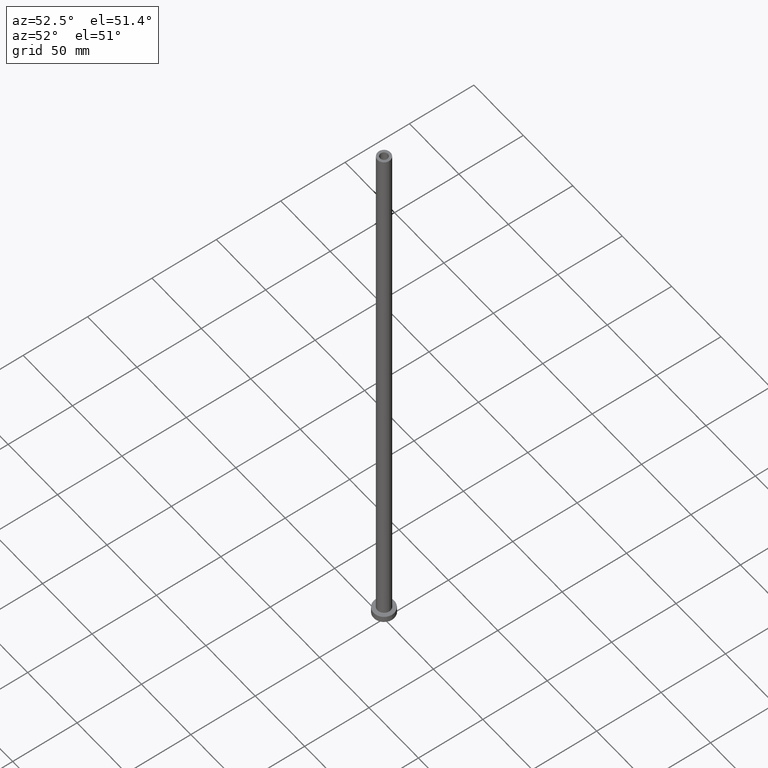
[diagram: clean part render]
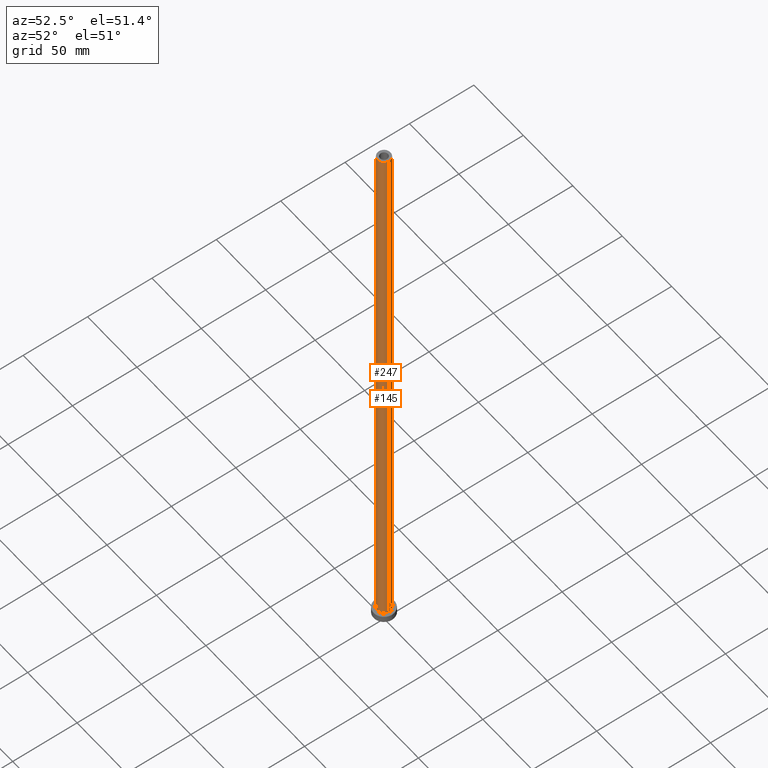
[diagram: same view with one multi-face feature highlighted, each face labeled with its STEP entity id]
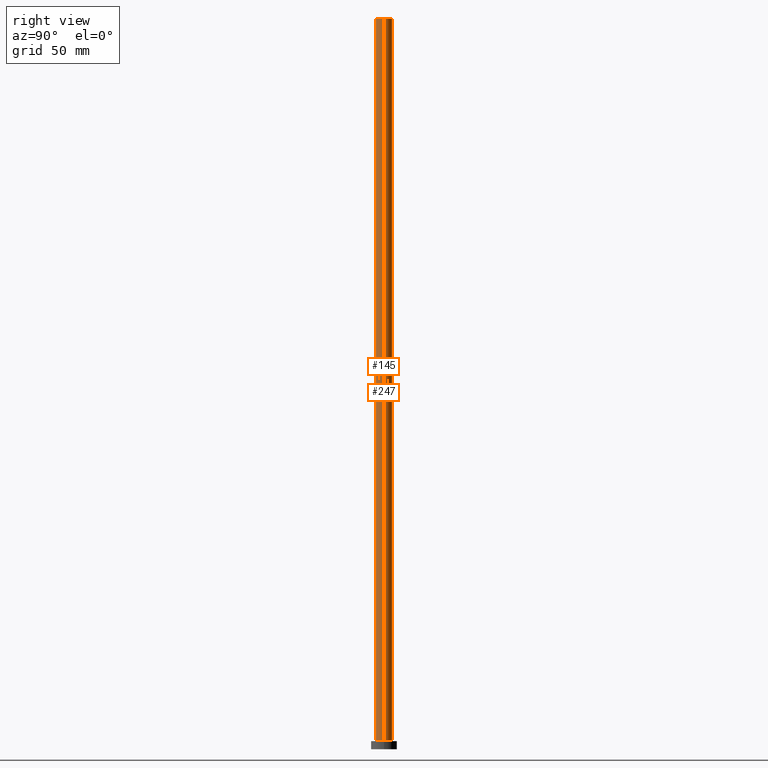
[diagram: same view with one multi-face feature highlighted, each face labeled with its STEP entity id]
A machine part, auxiliary view. The highlighted faces form ONE feature: a constant-radius fillet chain: 2 tangent blend faces with common blend radius 5 mm. The faces share edges in the B-rep.
A second angle (right view) of the same feature is appended — it is thin or edge-on in the first view.
Their STEP definitions:
[1] entity #247 (Cylinder):
#2 = LINE ( 'NONE', #399, #116 ) ;
#7 = DIRECTION ( 'NONE',  ( -0.000000000000000000, -0.000000000000000000, -1.000000000000000000 ) ) ;
#17 = DIRECTION ( 'NONE',  ( -0.000000000000000000, -0.000000000000000000, -1.000000000000000000 ) ) ;
#48 = CARTESIAN_POINT ( 'NONE',  ( -5.000000000000000000, 0.000000000000000000, 5.500000000000005329 ) ) ;
#49 = ORIENTED_EDGE ( 'NONE', *, *, #306, .T. ) ;
#65 = ORIENTED_EDGE ( 'NONE', *, *, #129, .F. ) ;
#68 = ORIENTED_EDGE ( 'NONE', *, *, #156, .F. ) ;
#71 = AXIS2_PLACEMENT_3D ( 'NONE', #198, #240, #441 ) ;
#116 = VECTOR ( 'NONE', #7, 1000.000000000000000 ) ;
#127 = CIRCLE ( 'NONE', #152, 5.000000000000000000 ) ;
#129 = EDGE_CURVE ( 'NONE', #147, #219, #127, .T. ) ;
#132 = DIRECTION ( 'NONE',  ( -0.000000000000000000, -0.000000000000000000, -1.000000000000000000 ) ) ;
#147 = VERTEX_POINT ( 'NONE', #171 ) ;
#152 = AXIS2_PLACEMENT_3D ( 'NONE', #204, #167, #354 ) ;
#156 = EDGE_CURVE ( 'NONE', #219, #381, #325, .T. ) ;
#165 = CIRCLE ( 'NONE', #71, 5.000000000000000000 ) ;
#167 = DIRECTION ( 'NONE',  ( 0.000000000000000000, 0.000000000000000000, 1.000000000000000000 ) ) ;
#171 = CARTESIAN_POINT ( 'NONE',  ( 5.000000000000000000, 6.123233995736766282E-16, 450.0000000000000000 ) ) ;
#181 = CARTESIAN_POINT ( 'NONE',  ( 5.000000000000000000, 6.123233995736766282E-16, 5.500000000000005329 ) ) ;
#193 = FACE_OUTER_BOUND ( 'NONE', #422, .T. ) ;
#198 = CARTESIAN_POINT ( 'NONE',  ( 0.000000000000000000, 0.000000000000000000, 5.500000000000005329 ) ) ;
#204 = CARTESIAN_POINT ( 'NONE',  ( 0.000000000000000000, 0.000000000000000000, 450.0000000000000000 ) ) ;
#219 = VERTEX_POINT ( 'NONE', #425 ) ;
#240 = DIRECTION ( 'NONE',  ( 0.000000000000000000, 0.000000000000000000, 1.000000000000000000 ) ) ;
#247 = ADVANCED_FACE ( 'NONE', ( #193 ), #340, .T. ) ;
#286 = EDGE_CURVE ( 'NONE', #147, #408, #2, .T. ) ;
#297 = CARTESIAN_POINT ( 'NONE',  ( -5.000000000000000000, 0.000000000000000000, 450.0000000000000000 ) ) ;
#306 = EDGE_CURVE ( 'NONE', #408, #381, #165, .T. ) ;
#308 = DIRECTION ( 'NONE',  ( -1.000000000000000000, 0.000000000000000000, 0.000000000000000000 ) ) ;
#319 = VECTOR ( 'NONE', #132, 1000.000000000000000 ) ;
#325 = LINE ( 'NONE', #297, #319 ) ;
#340 = CYLINDRICAL_SURFACE ( 'NONE', #357, 5.000000000000000000 ) ;
#354 = DIRECTION ( 'NONE',  ( 1.000000000000000000, 0.000000000000000000, 0.000000000000000000 ) ) ;
#357 = AXIS2_PLACEMENT_3D ( 'NONE', #371, #17, #308 ) ;
#371 = CARTESIAN_POINT ( 'NONE',  ( 0.000000000000000000, 0.000000000000000000, 450.0000000000000000 ) ) ;
#373 = ORIENTED_EDGE ( 'NONE', *, *, #286, .T. ) ;
#381 = VERTEX_POINT ( 'NONE', #48 ) ;
#399 = CARTESIAN_POINT ( 'NONE',  ( 5.000000000000000000, 6.123233995736766282E-16, 450.0000000000000000 ) ) ;
#408 = VERTEX_POINT ( 'NONE', #181 ) ;
#422 = EDGE_LOOP ( 'NONE', ( #65, #373, #49, #68 ) ) ;
#425 = CARTESIAN_POINT ( 'NONE',  ( -5.000000000000000000, 0.000000000000000000, 450.0000000000000000 ) ) ;
#441 = DIRECTION ( 'NONE',  ( 1.000000000000000000, 0.000000000000000000, 0.000000000000000000 ) ) ;
[2] entity #145 (Cylinder):
#2 = LINE ( 'NONE', #399, #116 ) ;
#7 = DIRECTION ( 'NONE',  ( -0.000000000000000000, -0.000000000000000000, -1.000000000000000000 ) ) ;
#24 = DIRECTION ( 'NONE',  ( -1.000000000000000000, 0.000000000000000000, 0.000000000000000000 ) ) ;
#48 = CARTESIAN_POINT ( 'NONE',  ( -5.000000000000000000, 0.000000000000000000, 5.500000000000005329 ) ) ;
#93 = CYLINDRICAL_SURFACE ( 'NONE', #115, 5.000000000000000000 ) ;
#95 = DIRECTION ( 'NONE',  ( 0.000000000000000000, 0.000000000000000000, 1.000000000000000000 ) ) ;
#99 = AXIS2_PLACEMENT_3D ( 'NONE', #383, #95, #390 ) ;
#115 = AXIS2_PLACEMENT_3D ( 'NONE', #212, #252, #24 ) ;
#116 = VECTOR ( 'NONE', #7, 1000.000000000000000 ) ;
#123 = EDGE_CURVE ( 'NONE', #381, #408, #460, .T. ) ;
#132 = DIRECTION ( 'NONE',  ( -0.000000000000000000, -0.000000000000000000, -1.000000000000000000 ) ) ;
#141 = CARTESIAN_POINT ( 'NONE',  ( 0.000000000000000000, 0.000000000000000000, 450.0000000000000000 ) ) ;
#145 = ADVANCED_FACE ( 'NONE', ( #288 ), #93, .T. ) ;
#147 = VERTEX_POINT ( 'NONE', #171 ) ;
#156 = EDGE_CURVE ( 'NONE', #219, #381, #325, .T. ) ;
#168 = CIRCLE ( 'NONE', #387, 5.000000000000000000 ) ;
#171 = CARTESIAN_POINT ( 'NONE',  ( 5.000000000000000000, 6.123233995736766282E-16, 450.0000000000000000 ) ) ;
#181 = CARTESIAN_POINT ( 'NONE',  ( 5.000000000000000000, 6.123233995736766282E-16, 5.500000000000005329 ) ) ;
#212 = CARTESIAN_POINT ( 'NONE',  ( 0.000000000000000000, 0.000000000000000000, 450.0000000000000000 ) ) ;
#219 = VERTEX_POINT ( 'NONE', #425 ) ;
#252 = DIRECTION ( 'NONE',  ( -0.000000000000000000, -0.000000000000000000, -1.000000000000000000 ) ) ;
#265 = EDGE_LOOP ( 'NONE', ( #398, #370, #367, #401 ) ) ;
#286 = EDGE_CURVE ( 'NONE', #147, #408, #2, .T. ) ;
#288 = FACE_OUTER_BOUND ( 'NONE', #265, .T. ) ;
#297 = CARTESIAN_POINT ( 'NONE',  ( -5.000000000000000000, 0.000000000000000000, 450.0000000000000000 ) ) ;
#299 = EDGE_CURVE ( 'NONE', #219, #147, #168, .T. ) ;
#319 = VECTOR ( 'NONE', #132, 1000.000000000000000 ) ;
#325 = LINE ( 'NONE', #297, #319 ) ;
#344 = DIRECTION ( 'NONE',  ( 0.000000000000000000, 0.000000000000000000, 1.000000000000000000 ) ) ;
#366 = DIRECTION ( 'NONE',  ( 1.000000000000000000, 0.000000000000000000, 0.000000000000000000 ) ) ;
#367 = ORIENTED_EDGE ( 'NONE', *, *, #156, .T. ) ;
#370 = ORIENTED_EDGE ( 'NONE', *, *, #299, .F. ) ;
#381 = VERTEX_POINT ( 'NONE', #48 ) ;
#383 = CARTESIAN_POINT ( 'NONE',  ( 0.000000000000000000, 0.000000000000000000, 5.500000000000005329 ) ) ;
#387 = AXIS2_PLACEMENT_3D ( 'NONE', #141, #344, #366 ) ;
#390 = DIRECTION ( 'NONE',  ( 1.000000000000000000, 0.000000000000000000, 0.000000000000000000 ) ) ;
#398 = ORIENTED_EDGE ( 'NONE', *, *, #286, .F. ) ;
#399 = CARTESIAN_POINT ( 'NONE',  ( 5.000000000000000000, 6.123233995736766282E-16, 450.0000000000000000 ) ) ;
#401 = ORIENTED_EDGE ( 'NONE', *, *, #123, .T. ) ;
#408 = VERTEX_POINT ( 'NONE', #181 ) ;
#425 = CARTESIAN_POINT ( 'NONE',  ( -5.000000000000000000, 0.000000000000000000, 450.0000000000000000 ) ) ;
#460 = CIRCLE ( 'NONE', #99, 5.000000000000000000 ) ;